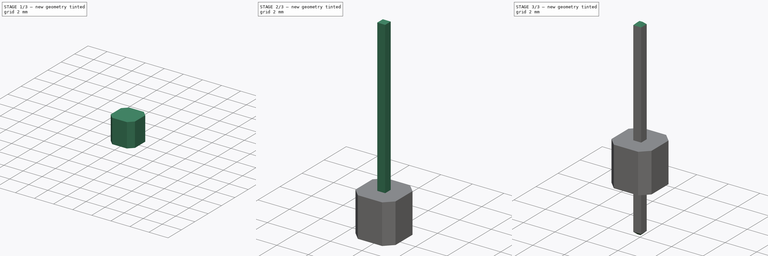
[diagram: build sequence overview — one tinted view per stage of 3, left to right]
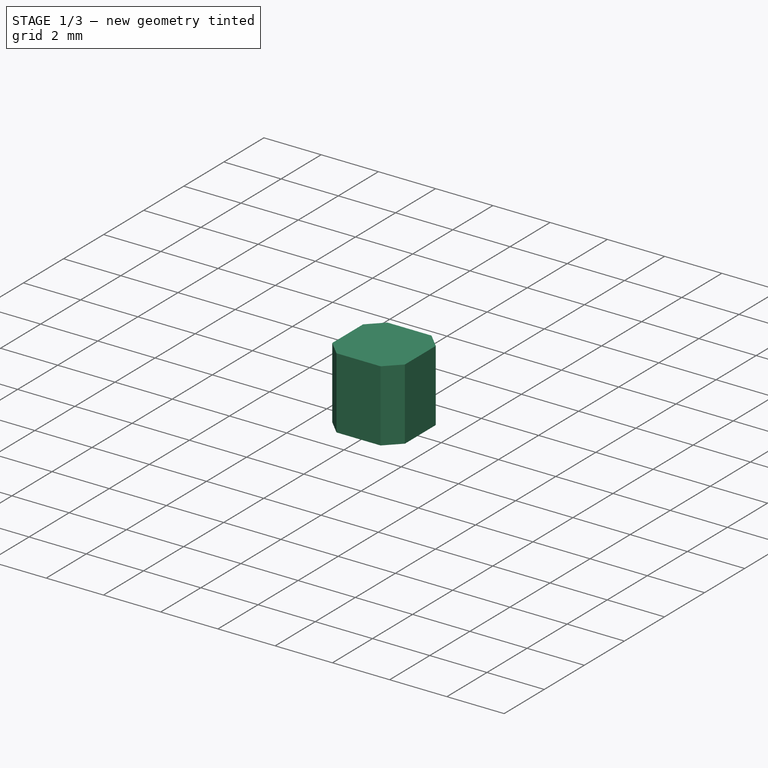
[diagram: stage 1 of 3 — iso view after this stage's code; geometry added in this stage tinted green]
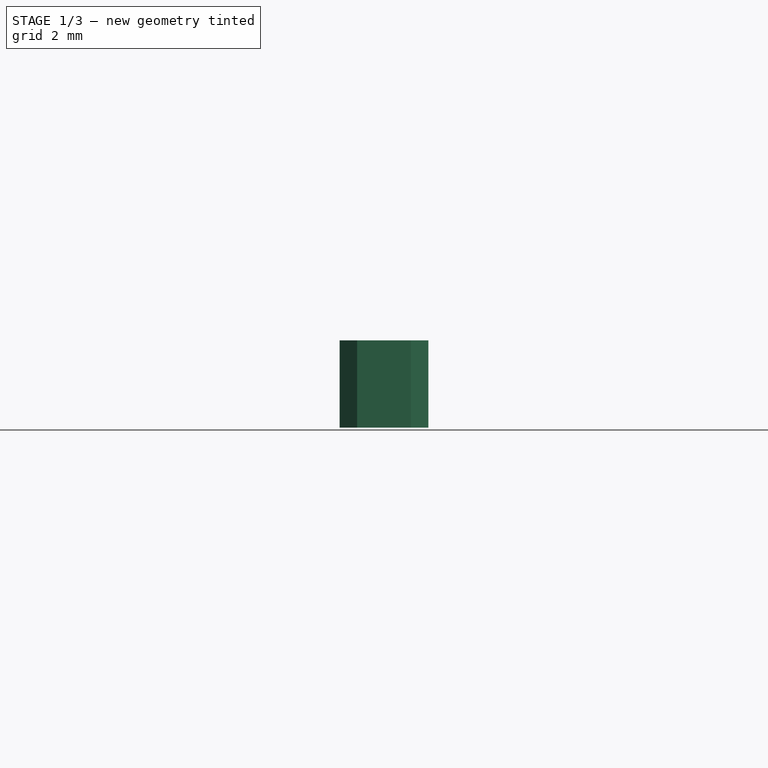
[diagram: stage 1 of 3 — front view after this stage's code; geometry added in this stage tinted green]
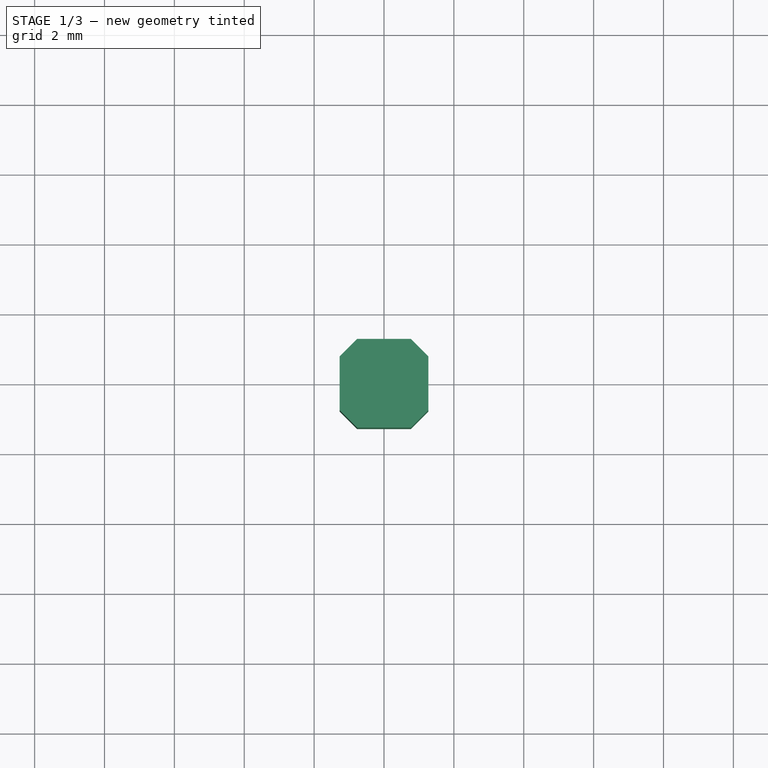
[diagram: stage 1 of 3 — top view after this stage's code; geometry added in this stage tinted green]
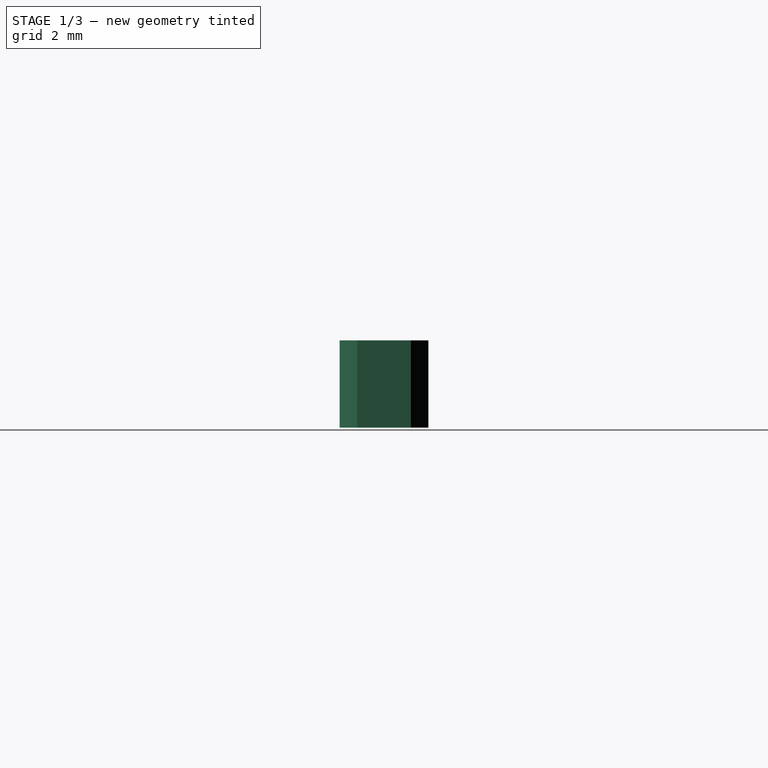
[diagram: stage 1 of 3 — right view after this stage's code; geometry added in this stage tinted green]
FCSTD DOCUMENT  (FreeCAD 0.18R4 (GitTag))
Label: connectorpinheader
License: All rights reserved
LicenseURL: http://en.wikipedia.org/wiki/All_rights_reserved
objects: Sketcher::SketchObject×2, PartDesign::Pad×2, PartDesign::Chamfer×2, PartDesign::Body×2, Part::FeaturePython×2, Spreadsheet::Sheet×1, App::Part×1
note: 12 computed .brp shape members not serialized (recipe doc carries the construction recipe); baked Part::Feature solids carry a one-line shape summary decoded from their .brp

FEATURE [Sketcher::SketchObject] Sketch001
  sketch-geometry (4):
    g0: LineSegment StartX=-1.27 StartY=1.27 StartZ=0 EndX=1.27 EndY=1.27 EndZ=0
    g1: LineSegment StartX=1.27 StartY=1.27 StartZ=0 EndX=1.27 EndY=-1.27 EndZ=0
    g2: LineSegment StartX=1.27 StartY=-1.27 StartZ=0 EndX=-1.27 EndY=-1.27 EndZ=0
    g3: LineSegment StartX=-1.27 StartY=-1.27 StartZ=0 EndX=-1.27 EndY=1.27 EndZ=0
  constraints (10):
    c: Coincident(g0,g1)
    c: Coincident(g1,g2)
    c: Coincident(g2,g3)
    c: Coincident(g3,g0)
    c: Horizontal(g2)
    c: Vertical(g3)
    c: Equal(g0,g1)
    c: Symmetric(g0,g0,g-2)
    c: Symmetric(g0,g1,g-1)
    c: DistanceX(g0,g0) = 2.54
FEATURE [PartDesign::Pad] Pad001
  Length = 2.5
  Length2 = 100
  Profile = -> Sketch001
  Type = 0
  expr: Length = Spreadsheet.B2
FEATURE [PartDesign::Chamfer] Chamfer001
  Base = -> Pad001 [Edge5,Edge2,Edge1,Edge8]
  BaseFeature = -> Pad001
  Size = 0.5
  expr: Size = Spreadsheet.B12
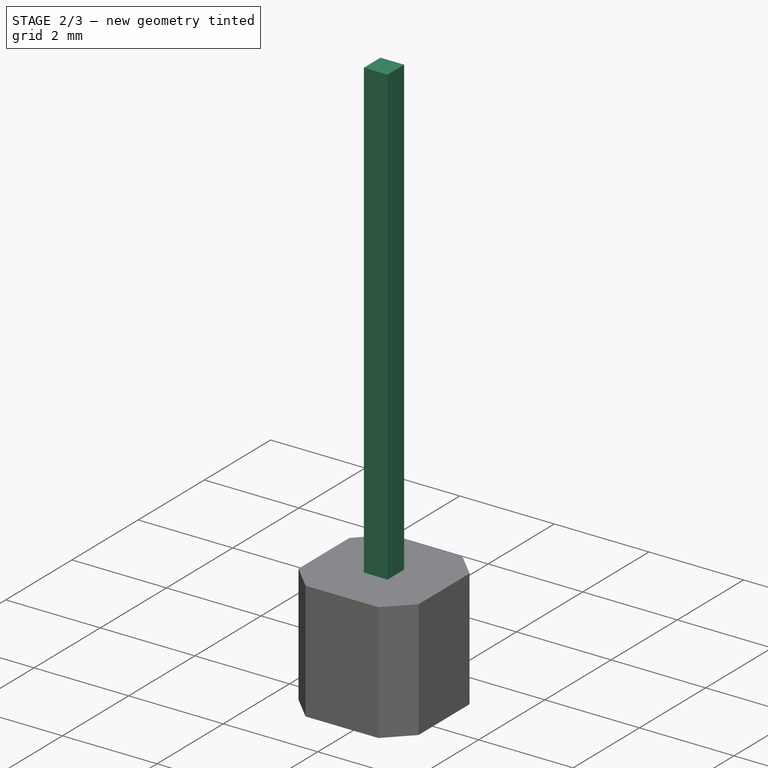
[diagram: stage 2 of 3 — iso view after this stage's code; geometry added in this stage tinted green]
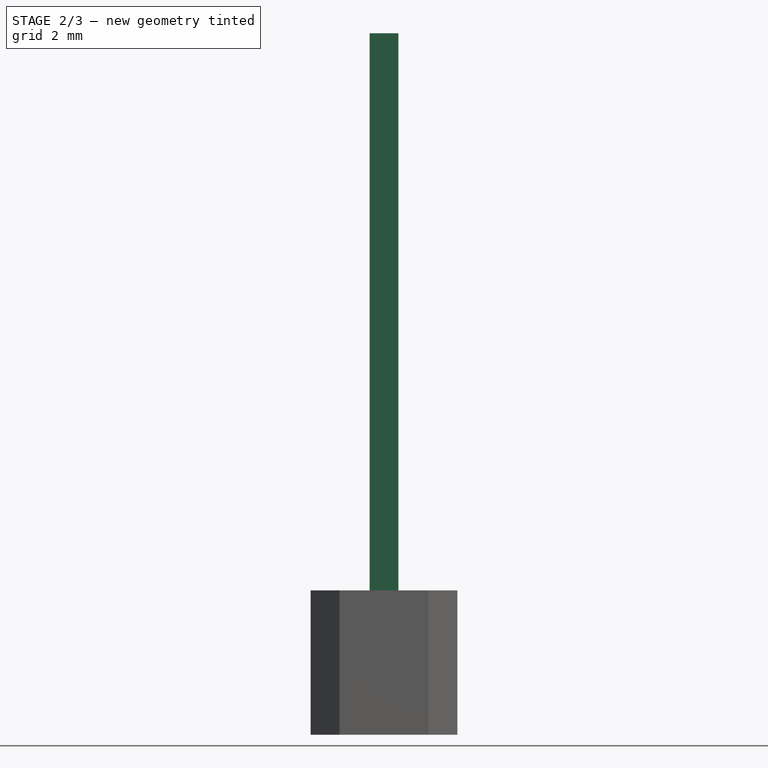
[diagram: stage 2 of 3 — front view after this stage's code; geometry added in this stage tinted green]
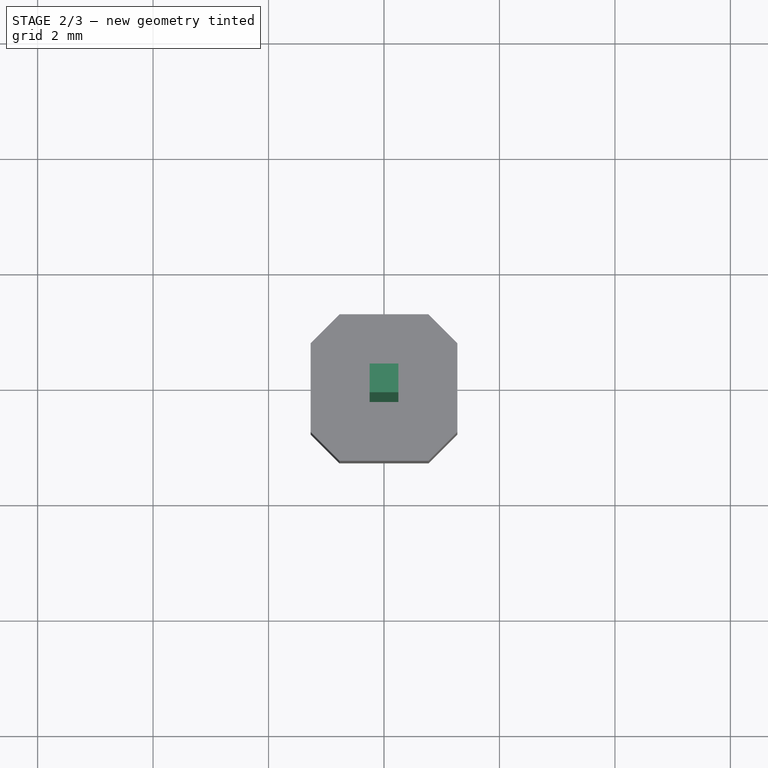
[diagram: stage 2 of 3 — top view after this stage's code; geometry added in this stage tinted green]
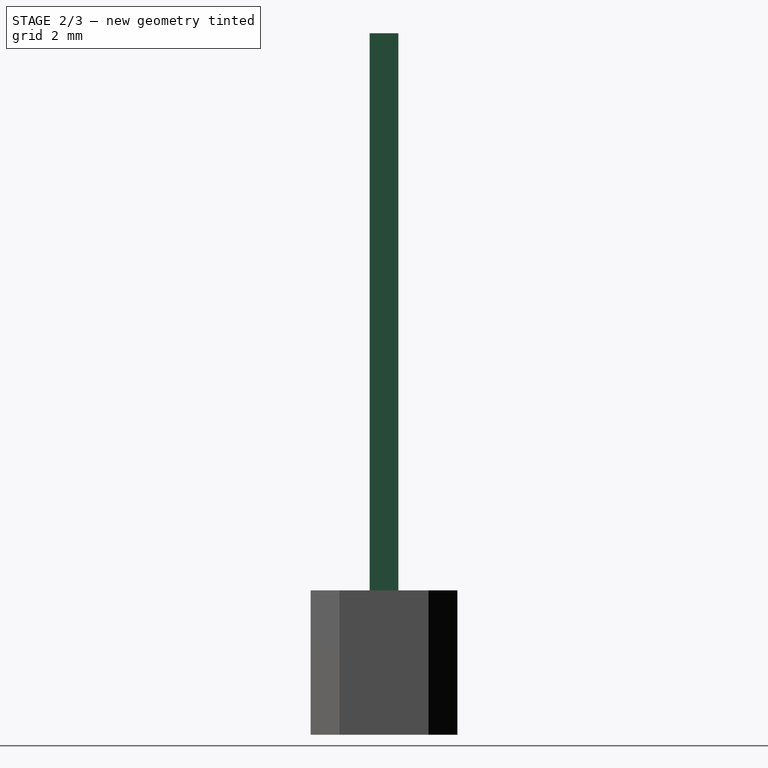
[diagram: stage 2 of 3 — right view after this stage's code; geometry added in this stage tinted green]
FEATURE [Sketcher::SketchObject] Sketch
  MapMode = 5
  Support = -> [XY_Plane001]
  expr: Placement.Base.z = Spreadsheet.C1
  sketch-geometry (4):
    g0: LineSegment StartX=-0.25 StartY=0.25 StartZ=0 EndX=0.25 EndY=0.25 EndZ=0
    g1: LineSegment StartX=0.25 StartY=0.25 StartZ=0 EndX=0.25 EndY=-0.25 EndZ=0
    g2: LineSegment StartX=0.25 StartY=-0.25 StartZ=0 EndX=-0.25 EndY=-0.25 EndZ=0
    g3: LineSegment StartX=-0.25 StartY=-0.25 StartZ=0 EndX=-0.25 EndY=0.25 EndZ=0
  constraints (10):
    c: Coincident(g0,g1)
    c: Coincident(g1,g2)
    c: Coincident(g2,g3)
    c: Coincident(g3,g0)
    c: Horizontal(g2)
    c: Vertical(g1)
    c: Equal(g1,g0)
    c: DistanceX(g0,g0) = 0.5
    c: Symmetric(g0,g0,g-2)
    c: Symmetric(g2,g0,g-1)
FEATURE [Spreadsheet::Sheet] Spreadsheet
  cells = A1=D; B1=2.9; C1==B1 * -1; D1=mm; F1=2.9; B2=2.5; C2=mm; F2=2.5; A3=C; B3=6.75; C3=mm; F3=6.75; A4=H; B4==B1 + B2 + B3; C4=total height mm; A7=rowsX; B7=1; F7=1; A8=colsY; B8=1; F8=1; A9=raster; B9=2.54; F9=2.54; A10=rowsZ; B10=1; F10=1; A11=rowsZ_raster; B11=10; C11=mm; F11=10; A12=bodyShapeChamfer; B12=0.5; C12=mm; F12=0.5
FEATURE [PartDesign::Pad] Pad
  Length = 12.15
  Length2 = 100
  Profile = -> Sketch
  Type = 0
  expr: Length = Spreadsheet.B4
FEATURE [PartDesign::Body] Body001
  Group = -> [Sketch001,Pad001,Chamfer001]
  Origin = -> Origin002
  Tip = -> Chamfer001
FEATURE [Part::FeaturePython] Array001  label="body"  # Draft array (typed FeaturePython)
  Angle = 360
  ArrayType = 0
  Axis = (0,0,1)
  Base = -> Body001
  Center = (0,0,0)
  Fuse = false
  IntervalAxis = (0,0,0)
  IntervalX = (2.54,0,0)
  IntervalY = (0,2.54,0)
  IntervalZ = (0,0,10)
  NumberPolar = 1
  NumberX = 1
  NumberY = 1
  NumberZ = 1
  expr: IntervalZ.z = Spreadsheet.B11
  expr: NumberZ = Spreadsheet.B10
  expr: IntervalY.y = Spreadsheet.B9
  expr: IntervalX.x = Spreadsheet.B9
  expr: NumberY = Spreadsheet.B7
  expr: NumberX = Spreadsheet.B8
FEATURE [App::Part] Part  label="pinhead"
  Group = -> [Body,Array,Body001,Array001,Spreadsheet]
  Origin = -> Origin
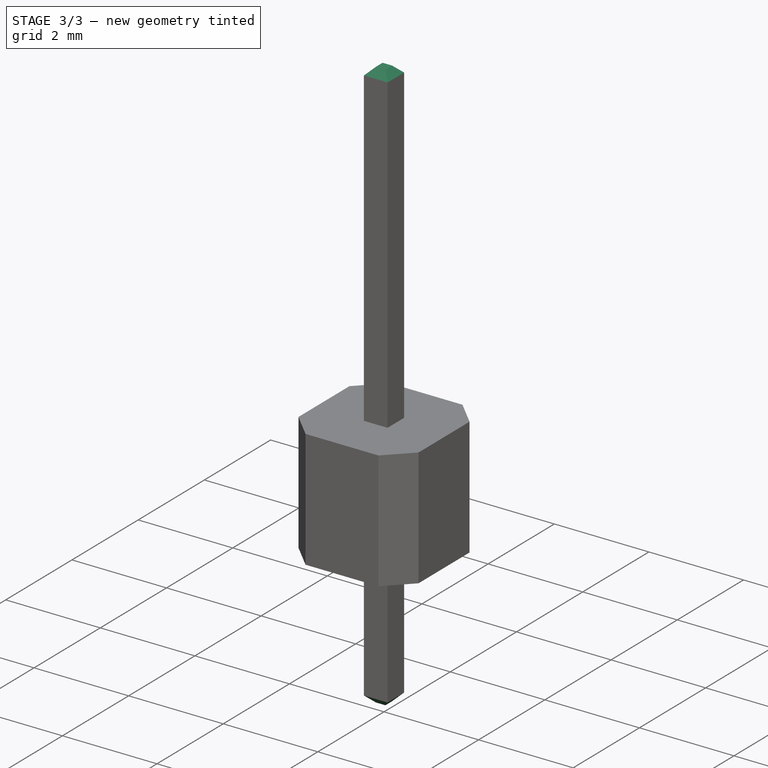
[diagram: stage 3 of 3 — iso view after this stage's code; geometry added in this stage tinted green]
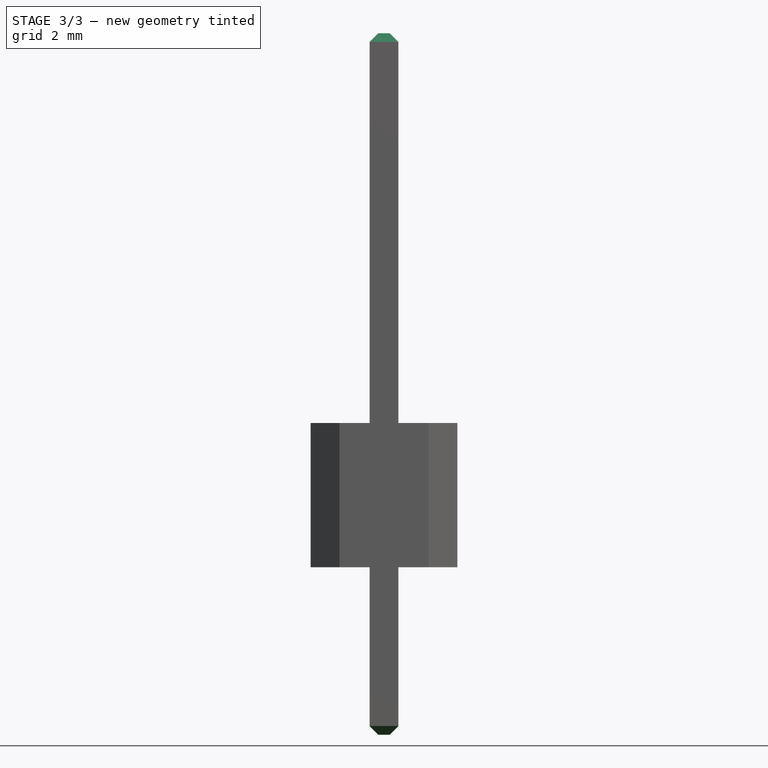
[diagram: stage 3 of 3 — front view after this stage's code; geometry added in this stage tinted green]
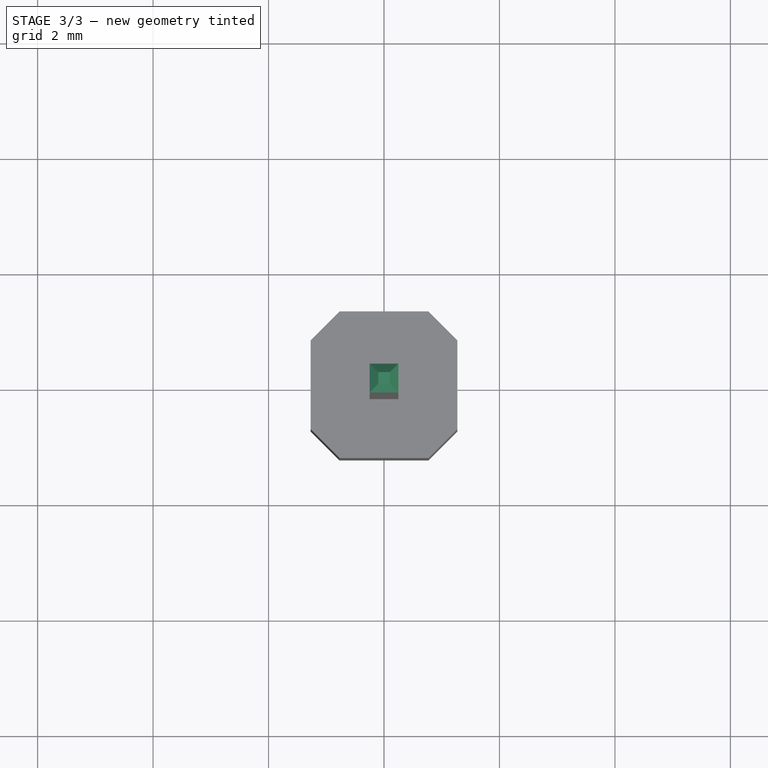
[diagram: stage 3 of 3 — top view after this stage's code; geometry added in this stage tinted green]
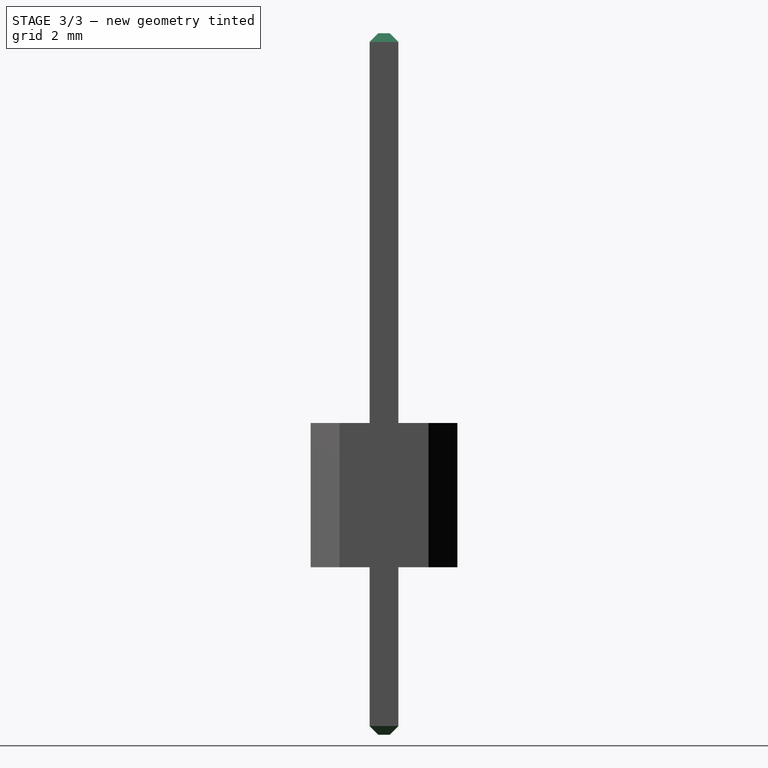
[diagram: stage 3 of 3 — right view after this stage's code; geometry added in this stage tinted green]
FEATURE [PartDesign::Chamfer] Chamfer
  Base = -> Pad [Face6,Face5]
  BaseFeature = -> Pad
  Size = 0.15
FEATURE [PartDesign::Body] Body  label="pin"
  Group = -> [Sketch,Pad,Chamfer]
  Origin = -> Origin001
  Placement = pos=(0,0,-2.9) rot=(0,0,1;0rad)
  Tip = -> Chamfer
  expr: Placement.Base.z = Spreadsheet.C1
FEATURE [Part::FeaturePython] Array  label="pins"  # Draft array (typed FeaturePython)
  Angle = 360
  ArrayType = 0
  Axis = (0,0,1)
  Base = -> Body
  Center = (0,0,0)
  Fuse = false
  IntervalAxis = (0,0,0)
  IntervalX = (2.54,0,0)
  IntervalY = (0,2.54,0)
  IntervalZ = (0,0,0)
  NumberPolar = 1
  NumberX = 1
  NumberY = 1
  NumberZ = 1
  expr: IntervalX.x = Spreadsheet.B9
  expr: IntervalY.y = Spreadsheet.B9
  expr: NumberY = Spreadsheet.B7
  expr: NumberX = Spreadsheet.B8
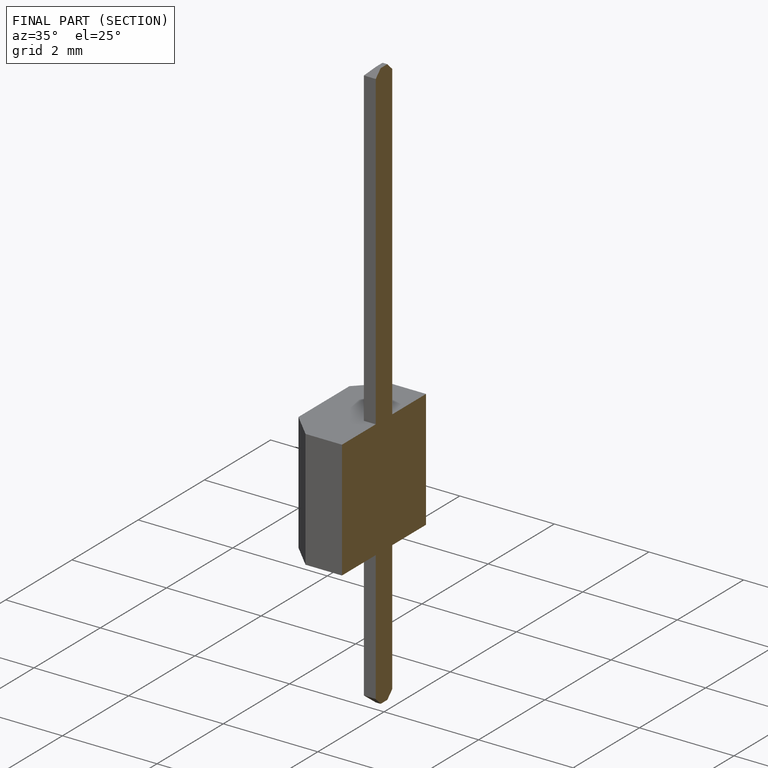
[diagram: finished part — half-section view (interior)]
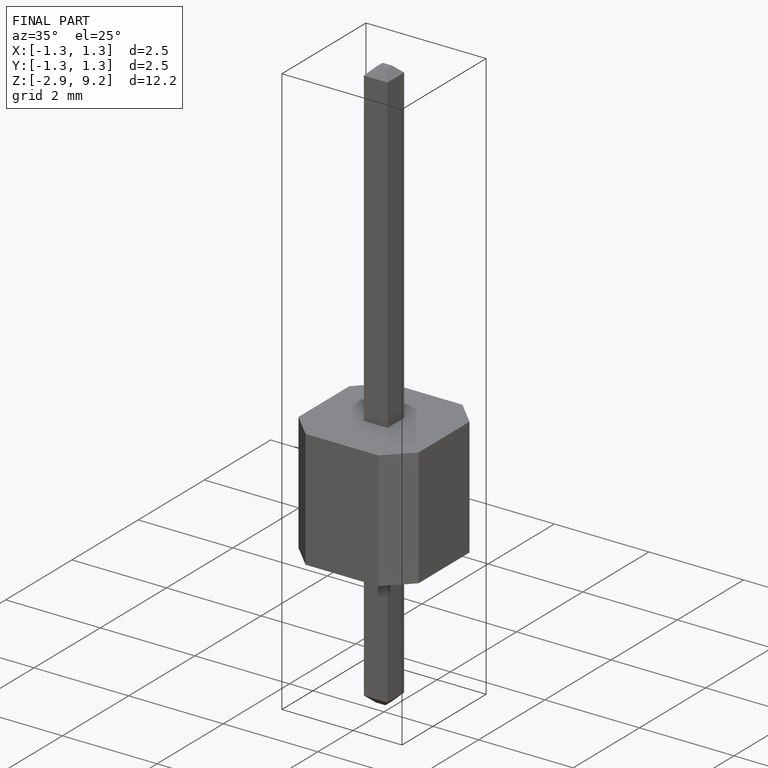
[diagram: finished part — iso view with bounding-box wireframe]
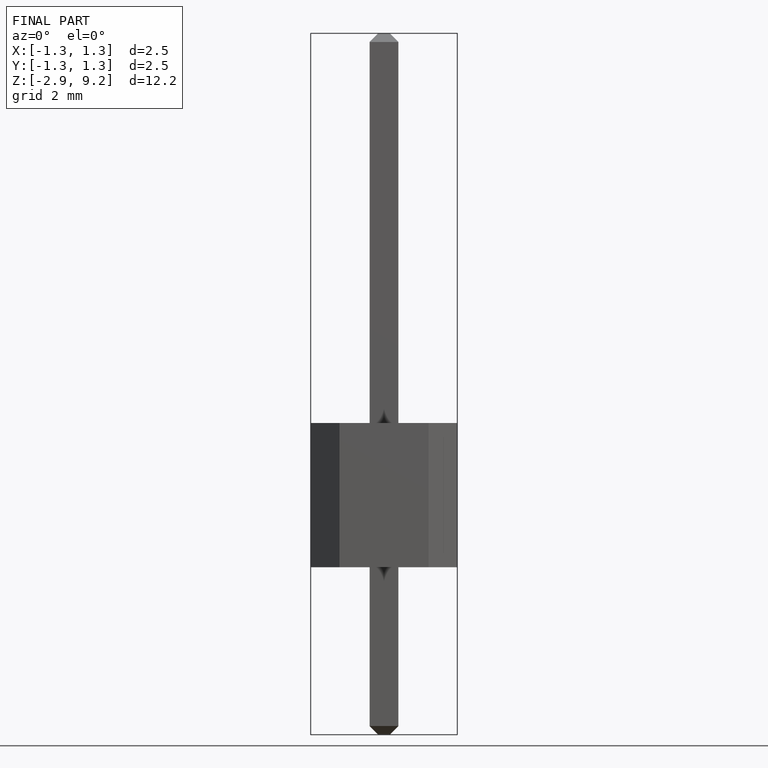
[diagram: finished part — front view with bounding-box wireframe]
